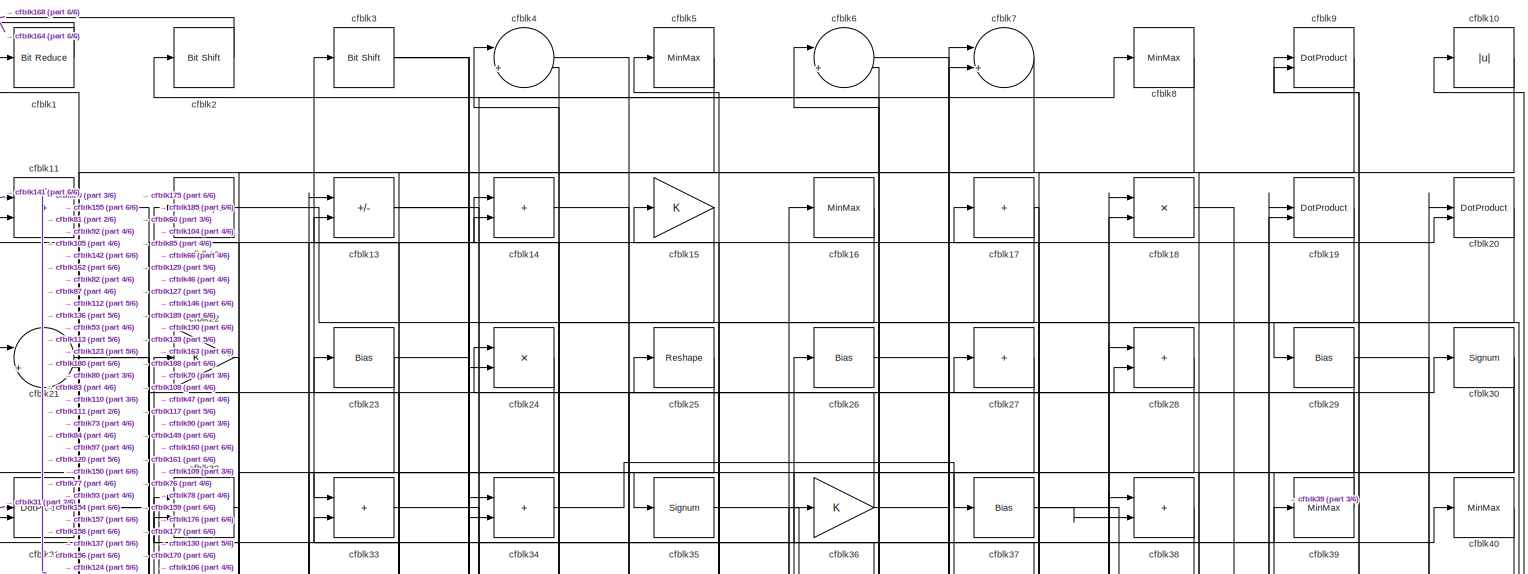
[diagram: root canvas - part 1/6, full width, top band]
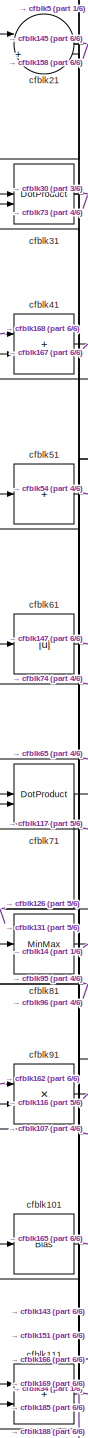
[diagram: root canvas - part 2/6, middle left region]
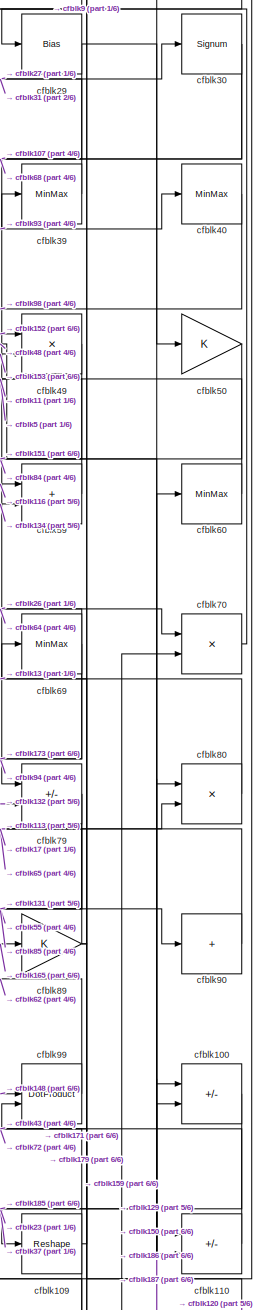
[diagram: root canvas - part 3/6, middle right region]
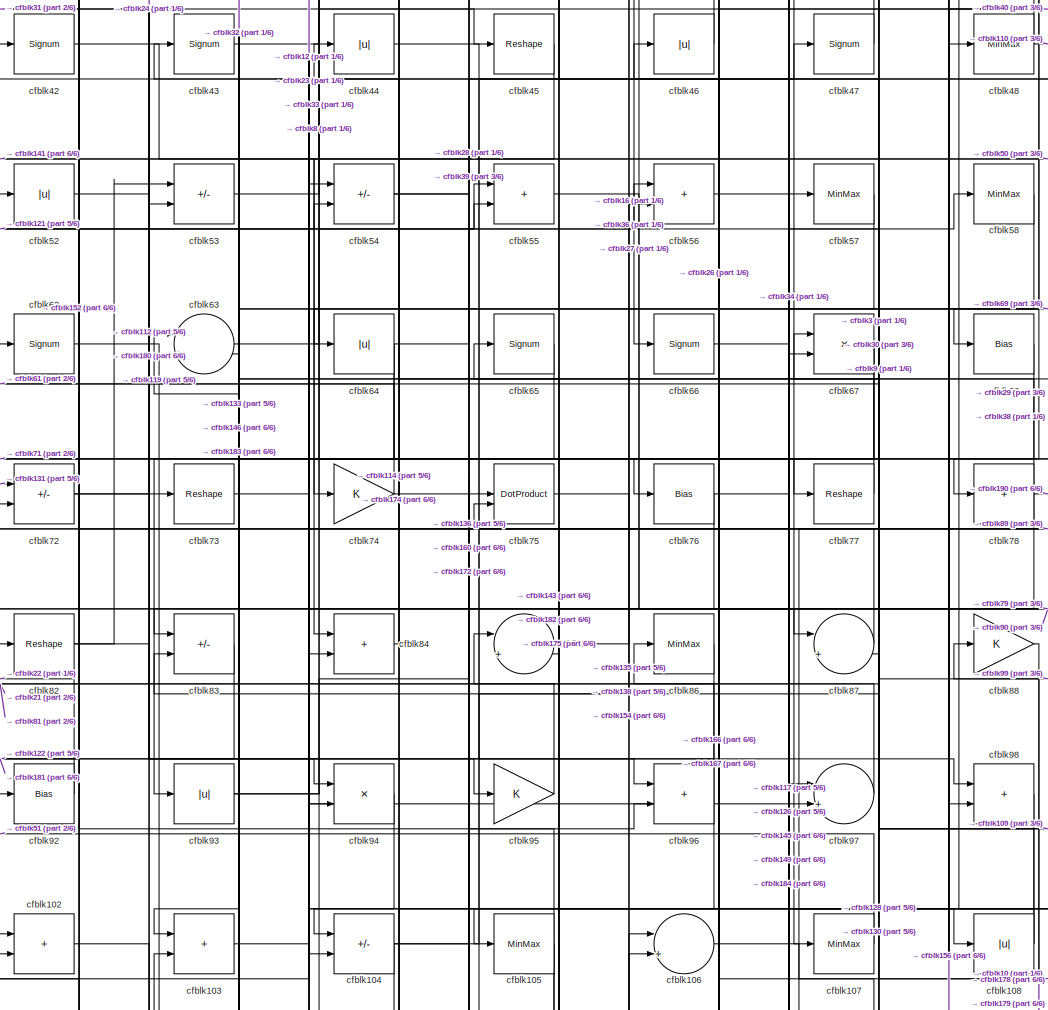
[diagram: root canvas - part 4/6, central region]
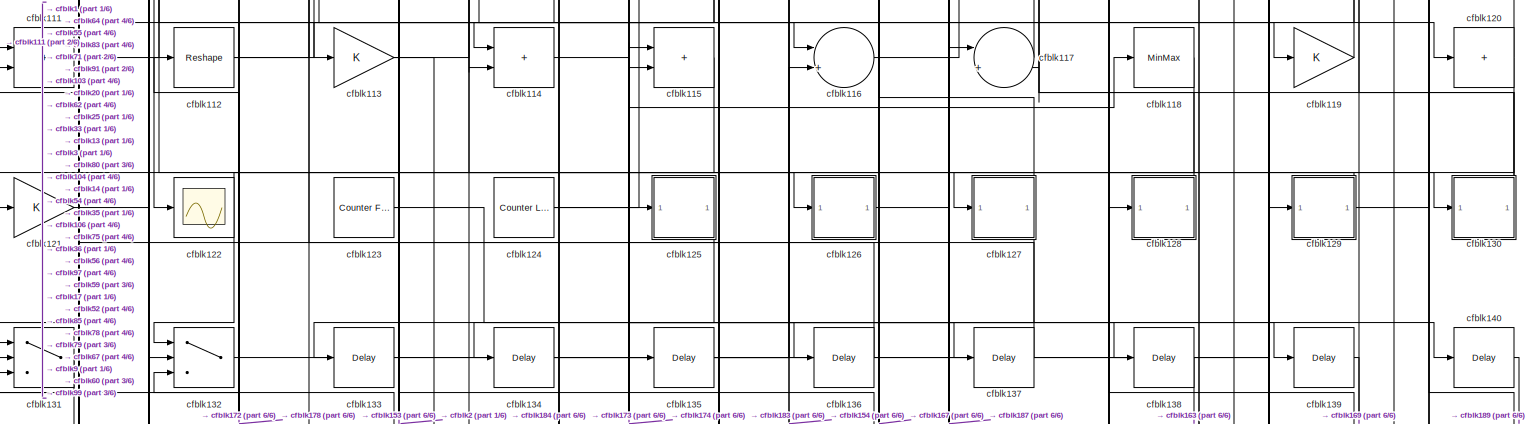
[diagram: root canvas - part 5/6, full width, middle band]
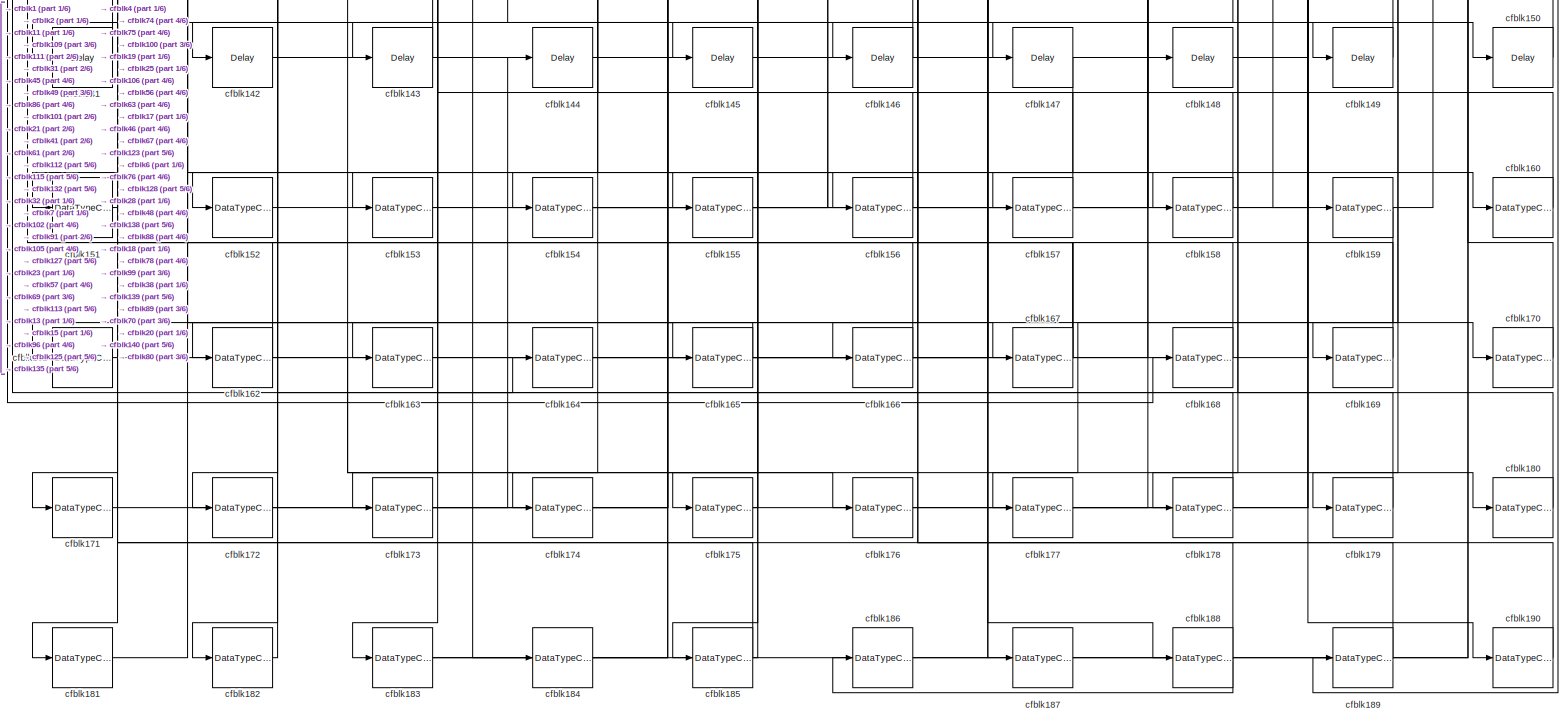
[diagram: root canvas - part 6/6, full width, bottom band]
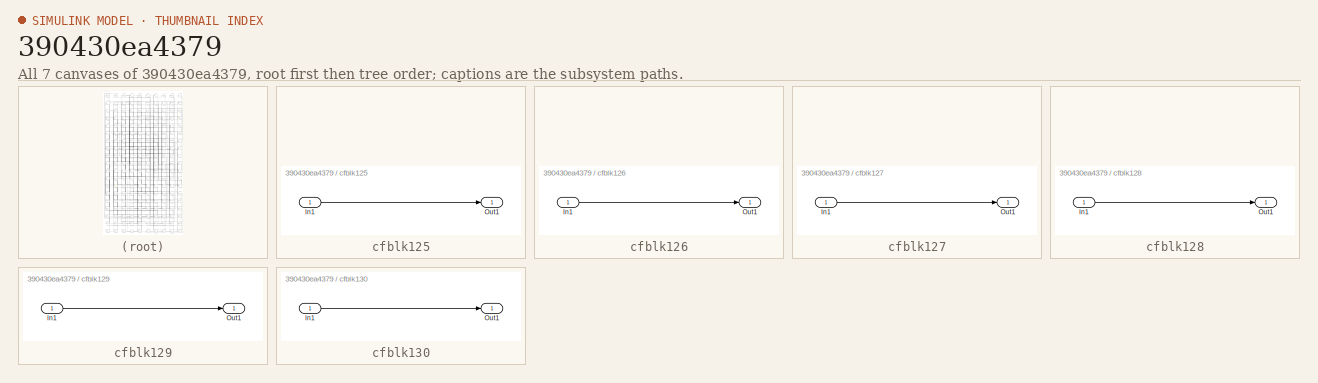
[diagram: thumbnail index - all 7 canvases of the model, root first then tree order]
MODEL slx_390430ea4379
KIND model
CONFIG AbsTol = auto
CONFIG EnableMultiTasking = off
CONFIG FixedStep = auto
CONFIG MaxStep = auto
CONFIG MinStep = auto
CONFIG RelTol = 1e-3
CONFIG SampleTimeConstraint = Unconstrained
CONFIG SolverName = VariableStepAuto
CONFIG StartTime = 0.0
CONFIG StopTime = 10.0
BLOCK [Reference] cfblk1  REF=hdlsllib/Logic and Bit
Operations/Bit Reduce
  SourceBlock = hdlsllib/Logic and Bit\nOperations/Bit Reduce
  SourceType = Bit Reduce
BLOCK [Abs] cfblk10
  SaturateOnIntegerOverflow = off
BLOCK [Sum] cfblk100
  IconShape = rectangular
  Inputs = +-
BLOCK [Bias] cfblk101
  Bias = 0.0
  SaturateOnIntegerOverflow = off
BLOCK [Sum] cfblk102
  IconShape = rectangular
BLOCK [Sum] cfblk103
  IconShape = rectangular
BLOCK [Sum] cfblk104
  IconShape = rectangular
  Inputs = +-
BLOCK [MinMax] cfblk105
BLOCK [Sum] cfblk106
  Inputs = |++
BLOCK [MinMax] cfblk107
BLOCK [Abs] cfblk108
  SaturateOnIntegerOverflow = off
BLOCK [Reshape] cfblk109
BLOCK [Sum] cfblk11
  IconShape = rectangular
BLOCK [Sum] cfblk110
  IconShape = rectangular
  Inputs = +-
BLOCK [Sum] cfblk111
  IconShape = rectangular
BLOCK [Reshape] cfblk112
BLOCK [Gain] cfblk113
BLOCK [Sum] cfblk114
  IconShape = rectangular
BLOCK [Sum] cfblk115
  IconShape = rectangular
BLOCK [Sum] cfblk116
  Inputs = |++
BLOCK [Sum] cfblk117
  Inputs = |++
BLOCK [MinMax] cfblk118
BLOCK [Gain] cfblk119
BLOCK [Reshape] cfblk12
BLOCK [Sum] cfblk120
  IconShape = rectangular
  Inputs = +
BLOCK [Gain] cfblk121
BLOCK [Scope] cfblk122
  Floating = off
  NumInputPorts = 1
  ScopeSpecificationString = Simulink.scopes.TimeScopeBlockCfg('CurrentConfiguration', extmgr.ConfigurationSet(extmgr.Configuration('Core','General UI',true),extmgr.Configuration('Core','Source UI',true),extmgr.Configuration('Sources','WiredSimulink',true,'DataLoggingVariableName','ScopeData2','DataLoggingSaveFormat','Array','DataLoggingLimitDataPoints',true,'DataLoggingDecimation','1'),extmgr.Configuration('Visuals','Time Do...<+868ch>
BLOCK [Reference] cfblk123  REF=hdlsllib/Sources/Counter
Free-Running
  SourceBlock = hdlsllib/Sources/Counter\nFree-Running
  SourceType = Counter Free-Running
BLOCK [Reference] cfblk124  REF=hdlsllib/Sources/Counter
Limited
  SourceBlock = hdlsllib/Sources/Counter\nLimited
  SourceType = Counter Limited
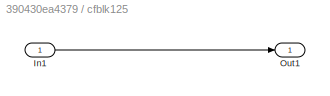
BLOCK [SubSystem] cfblk125
  LibrarySourceBlock = hdlsllib/Ports &\nSubsystems/Subsystem
BLOCK [Inport] cfblk125/In1
BLOCK [Outport] cfblk125/Out1
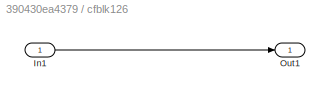
BLOCK [SubSystem] cfblk126
  LibrarySourceBlock = hdlsllib/Ports &\nSubsystems/Subsystem
BLOCK [Inport] cfblk126/In1
BLOCK [Outport] cfblk126/Out1
BLOCK [SubSystem] cfblk127
  LibrarySourceBlock = hdlsllib/Ports &\nSubsystems/Subsystem
BLOCK [Inport] cfblk127/In1
BLOCK [Outport] cfblk127/Out1
BLOCK [SubSystem] cfblk128
  LibrarySourceBlock = hdlsllib/Ports &\nSubsystems/Subsystem
BLOCK [Inport] cfblk128/In1
BLOCK [Outport] cfblk128/Out1
BLOCK [SubSystem] cfblk129
  LibrarySourceBlock = hdlsllib/Ports &\nSubsystems/Subsystem
BLOCK [Inport] cfblk129/In1
BLOCK [Outport] cfblk129/Out1
BLOCK [Sum] cfblk13
  IconShape = rectangular
  Inputs = +-
BLOCK [SubSystem] cfblk130
  LibrarySourceBlock = hdlsllib/Ports &\nSubsystems/Subsystem
BLOCK [Inport] cfblk130/In1
BLOCK [Outport] cfblk130/Out1
BLOCK [Switch] cfblk131
  InputSameDT = off
  SaturateOnIntegerOverflow = off
BLOCK [Switch] cfblk132
  InputSameDT = off
  SaturateOnIntegerOverflow = off
BLOCK [Delay] cfblk133
  InputPortMap = u0
  SampleTime = 1
BLOCK [Delay] cfblk134
  InputPortMap = u0
  SampleTime = 1
BLOCK [Delay] cfblk135
  InputPortMap = u0
  SampleTime = 1
BLOCK [Delay] cfblk136
  InputPortMap = u0
  SampleTime = 1
BLOCK [Delay] cfblk137
  InputPortMap = u0
  SampleTime = 1
BLOCK [Delay] cfblk138
  InputPortMap = u0
  SampleTime = 1
BLOCK [Delay] cfblk139
  InputPortMap = u0
  SampleTime = 1
BLOCK [Sum] cfblk14
  IconShape = rectangular
BLOCK [Delay] cfblk140
  InputPortMap = u0
  SampleTime = 1
BLOCK [Delay] cfblk141
  InputPortMap = u0
  SampleTime = 1
BLOCK [Delay] cfblk142
  InputPortMap = u0
  SampleTime = 1
BLOCK [Delay] cfblk143
  InputPortMap = u0
  SampleTime = 1
BLOCK [Delay] cfblk144
  InputPortMap = u0
  SampleTime = 1
BLOCK [Delay] cfblk145
  InputPortMap = u0
  SampleTime = 1
BLOCK [Delay] cfblk146
  InputPortMap = u0
  SampleTime = 1
BLOCK [Delay] cfblk147
  InputPortMap = u0
  SampleTime = 1
BLOCK [Delay] cfblk148
  InputPortMap = u0
  SampleTime = 1
BLOCK [Delay] cfblk149
  InputPortMap = u0
  SampleTime = 1
BLOCK [Gain] cfblk15
BLOCK [Delay] cfblk150
  InputPortMap = u0
  SampleTime = 1
BLOCK [DataTypeConversion] cfblk151
  OutDataTypeStr = uint8
  RndMeth = Floor
  SaturateOnIntegerOverflow = off
BLOCK [DataTypeConversion] cfblk152
  OutDataTypeStr = uint8
  RndMeth = Floor
  SaturateOnIntegerOverflow = off
BLOCK [DataTypeConversion] cfblk153
  OutDataTypeStr = uint8
  RndMeth = Floor
  SaturateOnIntegerOverflow = off
BLOCK [DataTypeConversion] cfblk154
  RndMeth = Floor
  SaturateOnIntegerOverflow = off
BLOCK [DataTypeConversion] cfblk155
  OutDataTypeStr = uint8
  RndMeth = Floor
  SaturateOnIntegerOverflow = off
BLOCK [DataTypeConversion] cfblk156
  RndMeth = Floor
  SaturateOnIntegerOverflow = off
BLOCK [DataTypeConversion] cfblk157
  OutDataTypeStr = uint8
  RndMeth = Floor
  SaturateOnIntegerOverflow = off
BLOCK [DataTypeConversion] cfblk158
  OutDataTypeStr = uint8
  RndMeth = Floor
  SaturateOnIntegerOverflow = off
BLOCK [DataTypeConversion] cfblk159
  RndMeth = Floor
  SaturateOnIntegerOverflow = off
BLOCK [MinMax] cfblk16
BLOCK [DataTypeConversion] cfblk160
  OutDataTypeStr = uint8
  RndMeth = Floor
  SaturateOnIntegerOverflow = off
BLOCK [DataTypeConversion] cfblk161
  OutDataTypeStr = uint8
  RndMeth = Floor
  SaturateOnIntegerOverflow = off
BLOCK [DataTypeConversion] cfblk162
  RndMeth = Floor
  SaturateOnIntegerOverflow = off
BLOCK [DataTypeConversion] cfblk163
  OutDataTypeStr = uint8
  RndMeth = Floor
  SaturateOnIntegerOverflow = off
BLOCK [DataTypeConversion] cfblk164
  OutDataTypeStr = uint8
  RndMeth = Floor
  SaturateOnIntegerOverflow = off
BLOCK [DataTypeConversion] cfblk165
  RndMeth = Floor
  SaturateOnIntegerOverflow = off
BLOCK [DataTypeConversion] cfblk166
  OutDataTypeStr = uint8
  RndMeth = Floor
  SaturateOnIntegerOverflow = off
BLOCK [DataTypeConversion] cfblk167
  RndMeth = Floor
  SaturateOnIntegerOverflow = off
BLOCK [DataTypeConversion] cfblk168
  OutDataTypeStr = uint8
  RndMeth = Floor
  SaturateOnIntegerOverflow = off
BLOCK [DataTypeConversion] cfblk169
  OutDataTypeStr = uint8
  RndMeth = Floor
  SaturateOnIntegerOverflow = off
BLOCK [Sum] cfblk17
  IconShape = rectangular
  Inputs = +
BLOCK [DataTypeConversion] cfblk170
  OutDataTypeStr = uint8
  RndMeth = Floor
  SaturateOnIntegerOverflow = off
BLOCK [DataTypeConversion] cfblk171
  OutDataTypeStr = uint8
  RndMeth = Floor
  SaturateOnIntegerOverflow = off
BLOCK [DataTypeConversion] cfblk172
  OutDataTypeStr = uint8
  RndMeth = Floor
  SaturateOnIntegerOverflow = off
BLOCK [DataTypeConversion] cfblk173
  OutDataTypeStr = uint8
  RndMeth = Floor
  SaturateOnIntegerOverflow = off
BLOCK [DataTypeConversion] cfblk174
  OutDataTypeStr = uint8
  RndMeth = Floor
  SaturateOnIntegerOverflow = off
BLOCK [DataTypeConversion] cfblk175
  RndMeth = Floor
  SaturateOnIntegerOverflow = off
BLOCK [DataTypeConversion] cfblk176
  OutDataTypeStr = uint8
  RndMeth = Floor
  SaturateOnIntegerOverflow = off
BLOCK [DataTypeConversion] cfblk177
  OutDataTypeStr = uint8
  RndMeth = Floor
  SaturateOnIntegerOverflow = off
BLOCK [DataTypeConversion] cfblk178
  OutDataTypeStr = uint8
  RndMeth = Floor
  SaturateOnIntegerOverflow = off
BLOCK [DataTypeConversion] cfblk179
  OutDataTypeStr = uint8
  RndMeth = Floor
  SaturateOnIntegerOverflow = off
BLOCK [Product] cfblk18
  Inputs = */
  RndMeth = Zero
  SaturateOnIntegerOverflow = on
BLOCK [DataTypeConversion] cfblk180
  OutDataTypeStr = uint8
  RndMeth = Floor
  SaturateOnIntegerOverflow = off
BLOCK [DataTypeConversion] cfblk181
  OutDataTypeStr = uint8
  RndMeth = Floor
  SaturateOnIntegerOverflow = off
BLOCK [DataTypeConversion] cfblk182
  OutDataTypeStr = uint8
  RndMeth = Floor
  SaturateOnIntegerOverflow = off
BLOCK [DataTypeConversion] cfblk183
  RndMeth = Floor
  SaturateOnIntegerOverflow = off
BLOCK [DataTypeConversion] cfblk184
  OutDataTypeStr = uint8
  RndMeth = Floor
  SaturateOnIntegerOverflow = off
BLOCK [DataTypeConversion] cfblk185
  RndMeth = Floor
  SaturateOnIntegerOverflow = off
BLOCK [DataTypeConversion] cfblk186
  OutDataTypeStr = uint8
  RndMeth = Floor
  SaturateOnIntegerOverflow = off
BLOCK [DataTypeConversion] cfblk187
  OutDataTypeStr = uint8
  RndMeth = Floor
  SaturateOnIntegerOverflow = off
BLOCK [DataTypeConversion] cfblk188
  RndMeth = Floor
  SaturateOnIntegerOverflow = off
BLOCK [DataTypeConversion] cfblk189
  OutDataTypeStr = uint8
  RndMeth = Floor
  SaturateOnIntegerOverflow = off
BLOCK [DotProduct] cfblk19
  OutDataTypeStr = Inherit: Inherit via internal rule
BLOCK [DataTypeConversion] cfblk190
  OutDataTypeStr = uint8
  RndMeth = Floor
  SaturateOnIntegerOverflow = off
BLOCK [Reference] cfblk2  REF=hdlsllib/Logic and Bit
Operations/Bit Shift
  SourceBlock = hdlsllib/Logic and Bit\nOperations/Bit Shift
  SourceType = Bit Shift
BLOCK [DotProduct] cfblk20
  OutDataTypeStr = Inherit: Inherit via internal rule
BLOCK [Sum] cfblk21
  Inputs = |++
BLOCK [Gain] cfblk22
BLOCK [Bias] cfblk23
  Bias = 0.0
  SaturateOnIntegerOverflow = off
BLOCK [Product] cfblk24
  Inputs = */
  RndMeth = Zero
  SaturateOnIntegerOverflow = on
BLOCK [Reshape] cfblk25
BLOCK [Bias] cfblk26
  Bias = 0.0
  SaturateOnIntegerOverflow = off
BLOCK [Sum] cfblk27
  IconShape = rectangular
  Inputs = +
BLOCK [Sum] cfblk28
  IconShape = rectangular
BLOCK [Bias] cfblk29
  Bias = 0.0
  SaturateOnIntegerOverflow = off
BLOCK [Reference] cfblk3  REF=hdlsllib/Logic and Bit
Operations/Bit Shift
  SourceBlock = hdlsllib/Logic and Bit\nOperations/Bit Shift
  SourceType = Bit Shift
BLOCK [Signum] cfblk30
BLOCK [DotProduct] cfblk31
  OutDataTypeStr = Inherit: Inherit via internal rule
BLOCK [Sum] cfblk32
  IconShape = rectangular
  Inputs = +-
BLOCK [Sum] cfblk33
  IconShape = rectangular
BLOCK [Sum] cfblk34
  IconShape = rectangular
BLOCK [Signum] cfblk35
BLOCK [Gain] cfblk36
BLOCK [Bias] cfblk37
  Bias = 0.0
  SaturateOnIntegerOverflow = off
BLOCK [Sum] cfblk38
  IconShape = rectangular
BLOCK [MinMax] cfblk39
BLOCK [Sum] cfblk4
  Inputs = |++
BLOCK [MinMax] cfblk40
BLOCK [Sum] cfblk41
  IconShape = rectangular
BLOCK [Signum] cfblk42
BLOCK [Signum] cfblk43
BLOCK [Abs] cfblk44
  SaturateOnIntegerOverflow = off
BLOCK [Reshape] cfblk45
BLOCK [Abs] cfblk46
  SaturateOnIntegerOverflow = off
BLOCK [Signum] cfblk47
BLOCK [MinMax] cfblk48
BLOCK [Product] cfblk49
  Inputs = */
  RndMeth = Zero
  SaturateOnIntegerOverflow = on
BLOCK [MinMax] cfblk5
BLOCK [Gain] cfblk50
BLOCK [Sum] cfblk51
  IconShape = rectangular
  Inputs = +
BLOCK [Abs] cfblk52
  SaturateOnIntegerOverflow = off
BLOCK [Sum] cfblk53
  IconShape = rectangular
  Inputs = +-
BLOCK [Sum] cfblk54
  IconShape = rectangular
  Inputs = +-
BLOCK [Sum] cfblk55
  IconShape = rectangular
BLOCK [Sum] cfblk56
  IconShape = rectangular
BLOCK [MinMax] cfblk57
BLOCK [MinMax] cfblk58
BLOCK [Sum] cfblk59
  IconShape = rectangular
BLOCK [Sum] cfblk6
  Inputs = |++
BLOCK [MinMax] cfblk60
BLOCK [Abs] cfblk61
  SaturateOnIntegerOverflow = off
BLOCK [Signum] cfblk62
BLOCK [Sum] cfblk63
  Inputs = |++
BLOCK [Abs] cfblk64
  SaturateOnIntegerOverflow = off
BLOCK [Signum] cfblk65
BLOCK [Signum] cfblk66
BLOCK [Product] cfblk67
  Inputs = */
  RndMeth = Zero
  SaturateOnIntegerOverflow = on
BLOCK [Bias] cfblk68
  Bias = 0.0
  SaturateOnIntegerOverflow = off
BLOCK [MinMax] cfblk69
BLOCK [Sum] cfblk7
  Inputs = |++
BLOCK [Product] cfblk70
  Inputs = */
  RndMeth = Zero
  SaturateOnIntegerOverflow = on
BLOCK [DotProduct] cfblk71
  OutDataTypeStr = Inherit: Inherit via internal rule
BLOCK [Sum] cfblk72
  IconShape = rectangular
  Inputs = +-
BLOCK [Reshape] cfblk73
BLOCK [Gain] cfblk74
BLOCK [DotProduct] cfblk75
  OutDataTypeStr = Inherit: Inherit via internal rule
BLOCK [Bias] cfblk76
  Bias = 0.0
  SaturateOnIntegerOverflow = off
BLOCK [Reshape] cfblk77
BLOCK [Sum] cfblk78
  IconShape = rectangular
  Inputs = +
BLOCK [Sum] cfblk79
  IconShape = rectangular
  Inputs = +-
BLOCK [MinMax] cfblk8
BLOCK [Product] cfblk80
  Inputs = */
  RndMeth = Zero
  SaturateOnIntegerOverflow = on
BLOCK [MinMax] cfblk81
BLOCK [Reshape] cfblk82
BLOCK [Sum] cfblk83
  IconShape = rectangular
  Inputs = +-
BLOCK [Sum] cfblk84
  IconShape = rectangular
BLOCK [Sum] cfblk85
  Inputs = |++
BLOCK [MinMax] cfblk86
BLOCK [Sum] cfblk87
  Inputs = |++
BLOCK [Gain] cfblk88
BLOCK [Gain] cfblk89
BLOCK [DotProduct] cfblk9
  OutDataTypeStr = Inherit: Inherit via internal rule
BLOCK [Sum] cfblk90
  IconShape = rectangular
  Inputs = +
BLOCK [Product] cfblk91
  Inputs = */
  RndMeth = Zero
  SaturateOnIntegerOverflow = on
BLOCK [Bias] cfblk92
  Bias = 0.0
  SaturateOnIntegerOverflow = off
BLOCK [Abs] cfblk93
  SaturateOnIntegerOverflow = off
BLOCK [Product] cfblk94
  Inputs = */
  RndMeth = Zero
  SaturateOnIntegerOverflow = on
BLOCK [Gain] cfblk95
BLOCK [Sum] cfblk96
  IconShape = rectangular
BLOCK [Sum] cfblk97
  Inputs = |++
BLOCK [Sum] cfblk98
  IconShape = rectangular
BLOCK [DotProduct] cfblk99
  OutDataTypeStr = Inherit: Inherit via internal rule
LINE cfblk100:1 -> cfblk185:1
LINE cfblk101:1 -> cfblk165:1
LINE cfblk102:1 -> cfblk180:1
LINE cfblk103:1 -> cfblk54:1
NET cfblk104:1 -> cfblk114:1, cfblk36:1, cfblk96:2
NET cfblk105:1 -> cfblk143:1, cfblk182:1, cfblk32:2
LINE cfblk106:1 -> cfblk10:1
LINE cfblk107:1 -> cfblk51:1
NET cfblk108:1 -> cfblk105:1, cfblk83:2
NET cfblk109:1 -> cfblk171:1, cfblk72:2, cfblk9:1
LINE cfblk10:1 -> cfblk78:1
LINE cfblk110:1 -> cfblk43:1
LINE cfblk111:1 -> cfblk34:2
NET cfblk112:1 -> cfblk103:2, cfblk20:2
NET cfblk113:1 -> cfblk184:1, cfblk80:2
LINE cfblk114:1 -> cfblk140:1
LINE cfblk115:1 -> cfblk172:1
LINE cfblk116:1 -> cfblk59:1
LINE cfblk117:1 -> cfblk71:1
LINE cfblk118:1 -> cfblk132:1
LINE cfblk119:1 -> cfblk67:1
LINE cfblk11:1 -> cfblk155:1
NET cfblk120:1 -> cfblk127:1, cfblk99:2
LINE cfblk121:1 -> cfblk55:1
NET cfblk123:1 -> cfblk187:1, cfblk33:2
NET cfblk124:1 -> cfblk118:1, cfblk35:1
LINE cfblk125/In1:1 -> cfblk125/Out1:1
LINE cfblk125:1 -> cfblk134:1
LINE cfblk126/In1:1 -> cfblk126/Out1:1
LINE cfblk126:1 -> cfblk97:1
LINE cfblk127/In1:1 -> cfblk127/Out1:1
NET cfblk127:1 -> cfblk153:1, cfblk2:1
LINE cfblk128/In1:1 -> cfblk128/Out1:1
LINE cfblk128:1 -> cfblk85:1
LINE cfblk129/In1:1 -> cfblk129/Out1:1
NET cfblk129:1 -> cfblk121:1, cfblk60:1
LINE cfblk12:1 -> cfblk84:2
LINE cfblk130/In1:1 -> cfblk130/Out1:1
NET cfblk130:1 -> cfblk52:1, cfblk9:2
LINE cfblk131:1 -> cfblk111:1
LINE cfblk132:1 -> cfblk79:2
LINE cfblk133:1 -> cfblk116:2
LINE cfblk134:1 -> cfblk59:2
LINE cfblk135:1 -> cfblk106:2
LINE cfblk136:1 -> cfblk13:1
LINE cfblk137:1 -> cfblk1:1
LINE cfblk138:1 -> cfblk163:1
LINE cfblk139:1 -> cfblk169:1
NET cfblk13:1 -> cfblk120:1, cfblk150:1
LINE cfblk140:1 -> cfblk189:1
LINE cfblk141:1 -> cfblk11:1
LINE cfblk142:1 -> cfblk28:1
LINE cfblk143:1 -> cfblk91:2
LINE cfblk144:1 -> cfblk170:1
LINE cfblk145:1 -> cfblk67:2
LINE cfblk146:1 -> cfblk63:1
LINE cfblk147:1 -> cfblk157:1
LINE cfblk148:1 -> cfblk99:1
LINE cfblk149:1 -> cfblk38:1
LINE cfblk14:1 -> cfblk137:1
LINE cfblk150:1 -> cfblk80:1
LINE cfblk151:1 -> cfblk31:2
LINE cfblk152:1 -> cfblk49:1
LINE cfblk153:1 -> cfblk49:2
NET cfblk154:1 -> cfblk106:1, cfblk128:1, cfblk56:2
LINE cfblk155:1 -> cfblk15:1
NET cfblk156:1 -> cfblk48:1, cfblk63:2
LINE cfblk157:1 -> cfblk4:1
LINE cfblk158:1 -> cfblk4:2
NET cfblk159:1 -> cfblk177:1, cfblk70:2
LINE cfblk15:1 -> cfblk154:1
LINE cfblk160:1 -> cfblk18:1
LINE cfblk161:1 -> cfblk18:2
NET cfblk162:1 -> cfblk176:1, cfblk91:1
LINE cfblk163:1 -> cfblk7:1
LINE cfblk164:1 -> cfblk7:2
NET cfblk165:1 -> cfblk161:1, cfblk89:1
LINE cfblk166:1 -> cfblk101:1
NET cfblk167:1 -> cfblk132:2, cfblk132:3, cfblk46:1
LINE cfblk168:1 -> cfblk41:1
LINE cfblk169:1 -> cfblk41:2
LINE cfblk16:1 -> cfblk24:2
LINE cfblk170:1 -> cfblk20:1
LINE cfblk171:1 -> cfblk144:1
LINE cfblk172:1 -> cfblk75:1
LINE cfblk173:1 -> cfblk115:1
LINE cfblk174:1 -> cfblk115:2
NET cfblk175:1 -> cfblk148:1, cfblk75:2
LINE cfblk176:1 -> cfblk19:1
LINE cfblk177:1 -> cfblk19:2
LINE cfblk178:1 -> cfblk112:1
LINE cfblk179:1 -> cfblk88:1
NET cfblk17:1 -> cfblk117:2, cfblk146:1
LINE cfblk180:1 -> cfblk23:1
LINE cfblk181:1 -> cfblk102:1
LINE cfblk182:1 -> cfblk102:2
NET cfblk183:1 -> cfblk125:1, cfblk135:1
LINE cfblk184:1 -> cfblk57:1
NET cfblk185:1 -> cfblk111:2, cfblk25:1
LINE cfblk186:1 -> cfblk100:1
LINE cfblk187:1 -> cfblk100:2
NET cfblk188:1 -> cfblk186:1, cfblk21:2
LINE cfblk189:1 -> cfblk6:1
LINE cfblk18:1 -> cfblk159:1
LINE cfblk190:1 -> cfblk6:2
LINE cfblk19:1 -> cfblk175:1
LINE cfblk1:1 -> cfblk164:1
LINE cfblk20:1 -> cfblk37:1
NET cfblk21:1 -> cfblk145:1, cfblk158:1
LINE cfblk22:1 -> cfblk82:1
NET cfblk23:1 -> cfblk110:2, cfblk92:1
LINE cfblk24:1 -> cfblk53:2
LINE cfblk25:1 -> cfblk113:1
LINE cfblk26:1 -> cfblk70:1
LINE cfblk27:1 -> cfblk66:1
LINE cfblk28:1 -> cfblk33:1
NET cfblk29:1 -> cfblk50:1, cfblk68:1
LINE cfblk2:1 -> cfblk168:1
NET cfblk30:1 -> cfblk107:1, cfblk79:1
NET cfblk31:1 -> cfblk30:1, cfblk73:1
LINE cfblk32:1 -> cfblk142:1
LINE cfblk33:1 -> cfblk77:1
LINE cfblk34:1 -> cfblk108:1
LINE cfblk35:1 -> cfblk129:1
NET cfblk36:1 -> cfblk139:1, cfblk14:2
NET cfblk37:1 -> cfblk109:1, cfblk38:2
LINE cfblk38:1 -> cfblk76:1
LINE cfblk39:1 -> cfblk27:1
NET cfblk3:1 -> cfblk130:1, cfblk87:1, cfblk97:2
LINE cfblk40:1 -> cfblk98:2
LINE cfblk41:1 -> cfblk167:1
LINE cfblk42:1 -> cfblk74:1
LINE cfblk43:1 -> cfblk45:1
LINE cfblk44:1 -> cfblk98:1
LINE cfblk45:1 -> cfblk141:1
LINE cfblk46:1 -> cfblk26:1
LINE cfblk47:1 -> cfblk3:1
NET cfblk48:1 -> cfblk110:1, cfblk42:1
LINE cfblk49:1 -> cfblk151:1
LINE cfblk4:1 -> cfblk156:1
LINE cfblk50:1 -> cfblk84:1
LINE cfblk51:1 -> cfblk54:2
LINE cfblk52:1 -> cfblk96:1
LINE cfblk53:1 -> cfblk8:1
NET cfblk54:1 -> cfblk136:1, cfblk47:1
LINE cfblk55:1 -> cfblk90:1
LINE cfblk56:1 -> cfblk117:1
LINE cfblk57:1 -> cfblk183:1
LINE cfblk58:1 -> cfblk103:1
LINE cfblk59:1 -> cfblk11:2
LINE cfblk5:1 -> cfblk31:1
LINE cfblk60:1 -> cfblk5:1
LINE cfblk61:1 -> cfblk147:1
LINE cfblk62:1 -> cfblk119:1
LINE cfblk63:1 -> cfblk55:2
NET cfblk64:1 -> cfblk131:1, cfblk56:1, cfblk72:1
LINE cfblk65:1 -> cfblk71:2
LINE cfblk66:1 -> cfblk58:1
NET cfblk67:1 -> cfblk114:2, cfblk166:1
LINE cfblk68:1 -> cfblk93:1
NET cfblk69:1 -> cfblk173:1, cfblk64:1, cfblk94:2
LINE cfblk6:1 -> cfblk188:1
LINE cfblk70:1 -> cfblk29:1
NET cfblk71:1 -> cfblk126:1, cfblk131:2
NET cfblk72:1 -> cfblk40:1, cfblk95:1
LINE cfblk73:1 -> cfblk34:1
NET cfblk74:1 -> cfblk160:1, cfblk61:1
LINE cfblk75:1 -> cfblk138:1
NET cfblk76:1 -> cfblk149:1, cfblk152:1
LINE cfblk77:1 -> cfblk32:1
NET cfblk78:1 -> cfblk133:1, cfblk190:1, cfblk44:1
NET cfblk79:1 -> cfblk131:3, cfblk85:2
LINE cfblk7:1 -> cfblk162:1
LINE cfblk80:1 -> cfblk13:2
LINE cfblk81:1 -> cfblk14:1
NET cfblk82:1 -> cfblk53:1, cfblk94:1
LINE cfblk83:1 -> cfblk122:1
LINE cfblk84:1 -> cfblk24:1
LINE cfblk85:1 -> cfblk16:1
LINE cfblk86:1 -> cfblk181:1
LINE cfblk87:1 -> cfblk12:1
LINE cfblk88:1 -> cfblk178:1
NET cfblk89:1 -> cfblk179:1, cfblk65:1, cfblk69:1
LINE cfblk8:1 -> cfblk83:1
LINE cfblk90:1 -> cfblk17:1
LINE cfblk91:1 -> cfblk116:1
LINE cfblk92:1 -> cfblk22:1
NET cfblk93:1 -> cfblk28:2, cfblk39:1
LINE cfblk94:1 -> cfblk104:1
LINE cfblk95:1 -> cfblk21:1
NET cfblk96:1 -> cfblk174:1, cfblk81:1
LINE cfblk97:1 -> cfblk86:1
LINE cfblk98:1 -> cfblk104:2
LINE cfblk99:1 -> cfblk62:1
LINE cfblk9:1 -> cfblk87:2
note: NET lines group one-source signal fan-out (src -> all destinations, sorted); 1:1 wires keep LINE
